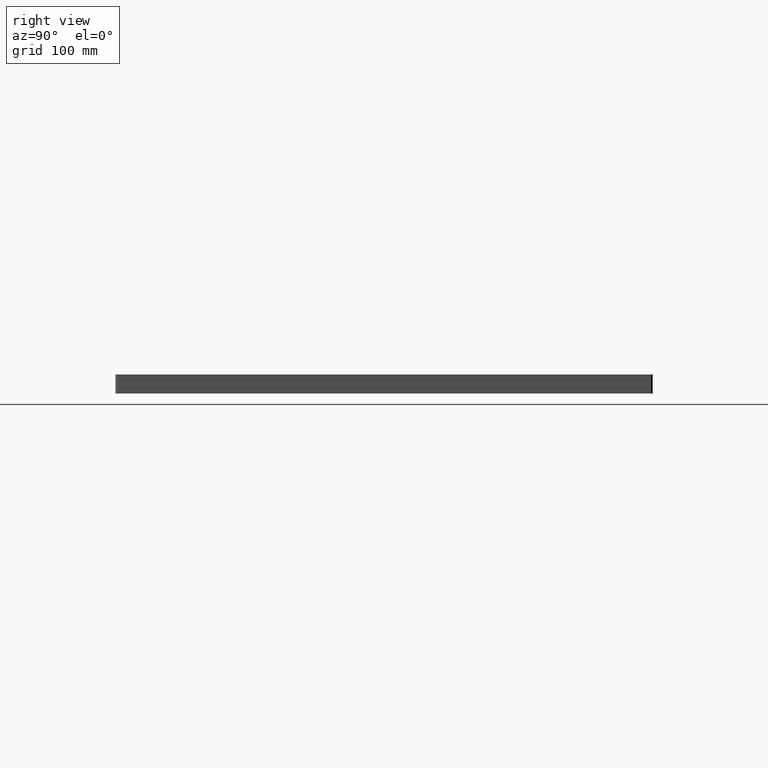
[diagram: clean part render]
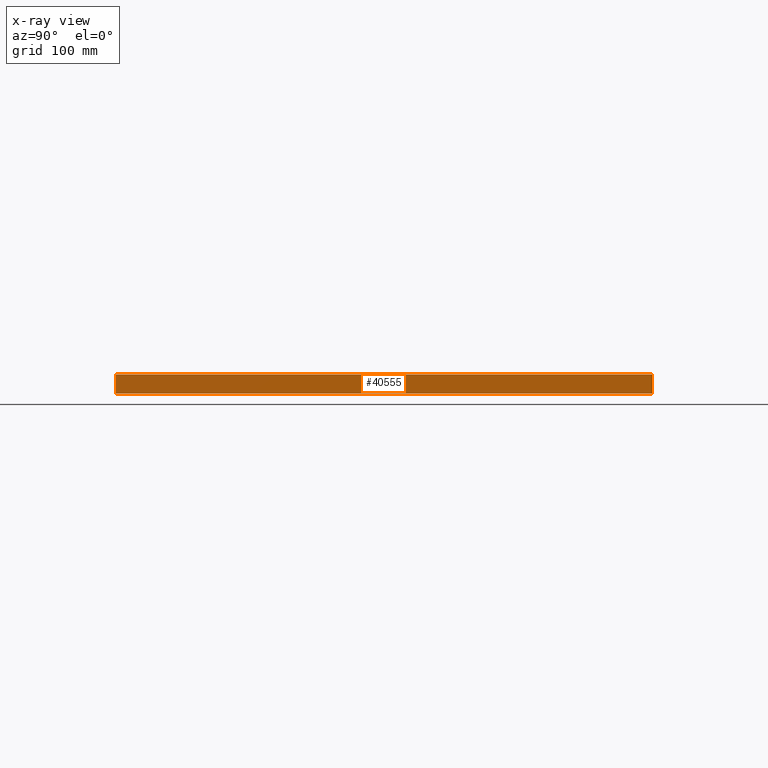
[diagram: x-ray — body ghosted, one internal face saturated and labeled with its STEP entity id]
A machine part, right view, then the same camera in x-ray: the body is ghosted and one INTERNAL B-rep face — a face not visible from any outside direction — is saturated and labeled: STEP entity #40555.
In plain terms, the highlighted planar face has unit normal (-1, 0, 0).
Its self-contained STEP definition (entity closure, byte-faithful):
#1048=LINE('',#64767,#2773);
#1108=LINE('',#65735,#2833);
#1109=LINE('',#65738,#2834);
#1122=LINE('',#66480,#2847);
#2773=VECTOR('',#48986,0.393700787401575);
#2833=VECTOR('',#50032,0.393700787401575);
#2834=VECTOR('',#50035,0.393700787401575);
#2847=VECTOR('',#50776,0.393700787401575);
#8453=FACE_OUTER_BOUND('',#11821,.T.);
#11821=EDGE_LOOP('',(#30138,#30139,#30140,#30141));
#19228=VERTEX_POINT('',#64764);
#19229=VERTEX_POINT('',#64766);
#19644=VERTEX_POINT('',#65733);
#19645=VERTEX_POINT('',#65737);
#23097=EDGE_CURVE('',#19228,#19229,#1048,.T.);
#23580=EDGE_CURVE('',#19644,#19228,#1108,.T.);
#23581=EDGE_CURVE('',#19645,#19644,#1109,.T.);
#23953=EDGE_CURVE('',#19229,#19645,#1122,.T.);
#30138=ORIENTED_EDGE('',*,*,#23580,.F.);
#30139=ORIENTED_EDGE('',*,*,#23581,.F.);
#30140=ORIENTED_EDGE('',*,*,#23953,.F.);
#30141=ORIENTED_EDGE('',*,*,#23097,.F.);
#39612=PLANE('',#44004);
#40555=ADVANCED_FACE('',(#8453),#39612,.F.);
#44004=AXIS2_PLACEMENT_3D('',#66481,#50777,#50778);
#48986=DIRECTION('',(0.,1.,0.));
#50032=DIRECTION('',(0.,0.,1.));
#50035=DIRECTION('',(0.,-1.,0.));
#50776=DIRECTION('',(0.,0.,-1.));
#50777=DIRECTION('center_axis',(-1.,0.,0.));
#50778=DIRECTION('ref_axis',(0.,0.,1.));
#64764=CARTESIAN_POINT('',(-0.00199999999999981,-12.9779289321881,0.92));
#64766=CARTESIAN_POINT('',(-0.00199999999999981,12.9779289321881,0.92));
#64767=CARTESIAN_POINT('',(-0.00199999999999981,-6.5,0.92));
#65733=CARTESIAN_POINT('',(-0.00199999999999981,-12.9779289321881,0.));
#65735=CARTESIAN_POINT('',(-0.002,-12.9779289321881,0.));
#65737=CARTESIAN_POINT('',(-0.00199999999999981,12.9779289321881,0.));
#65738=CARTESIAN_POINT('',(-0.00199999999999981,-6.5,0.));
#66480=CARTESIAN_POINT('',(-0.002,12.9779289321881,0.));
#66481=CARTESIAN_POINT('Origin',(-0.002,-13.,0.));